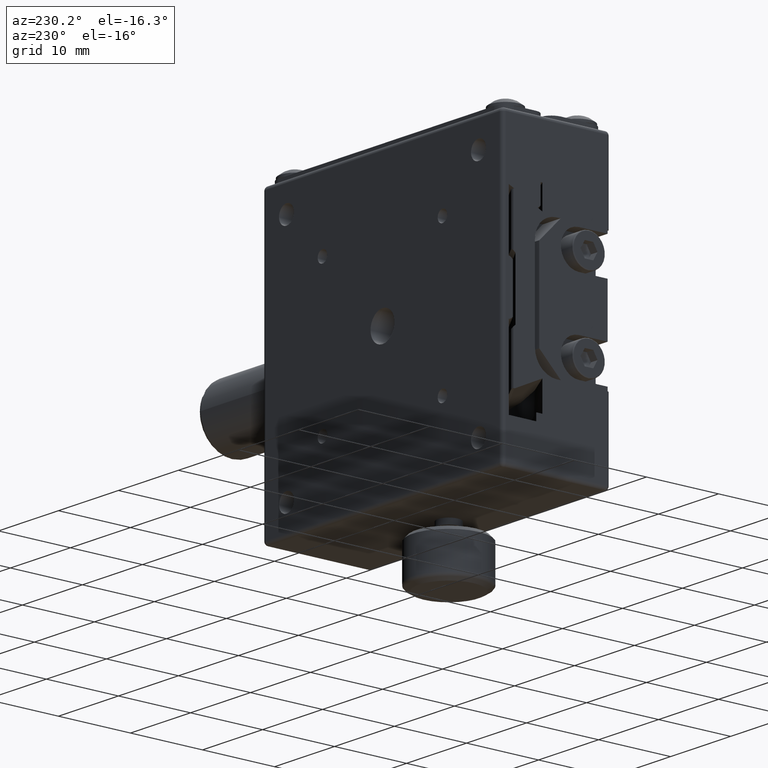
[diagram: clean part render]
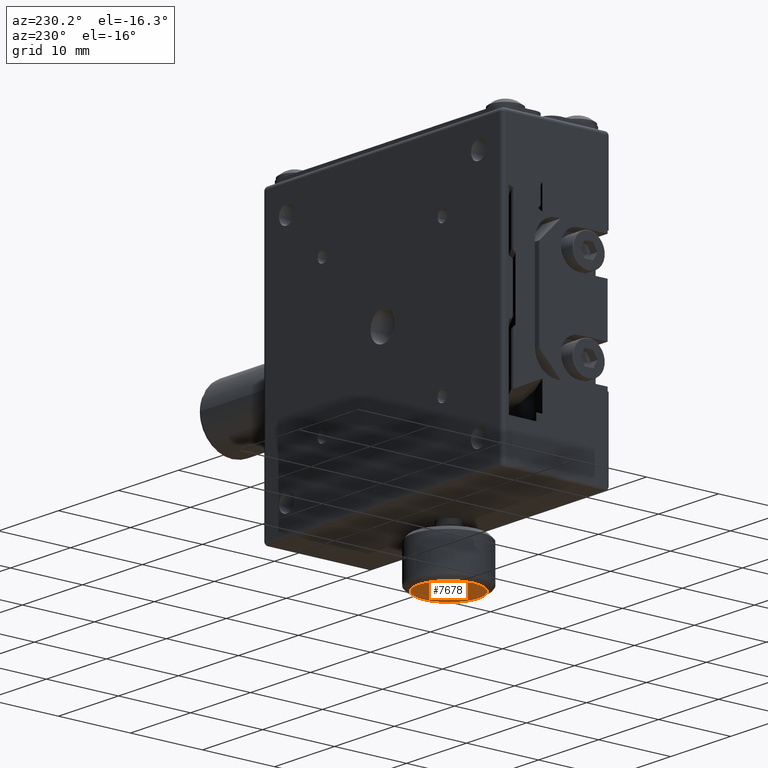
[diagram: same view with one face highlighted and labeled with its STEP entity id]
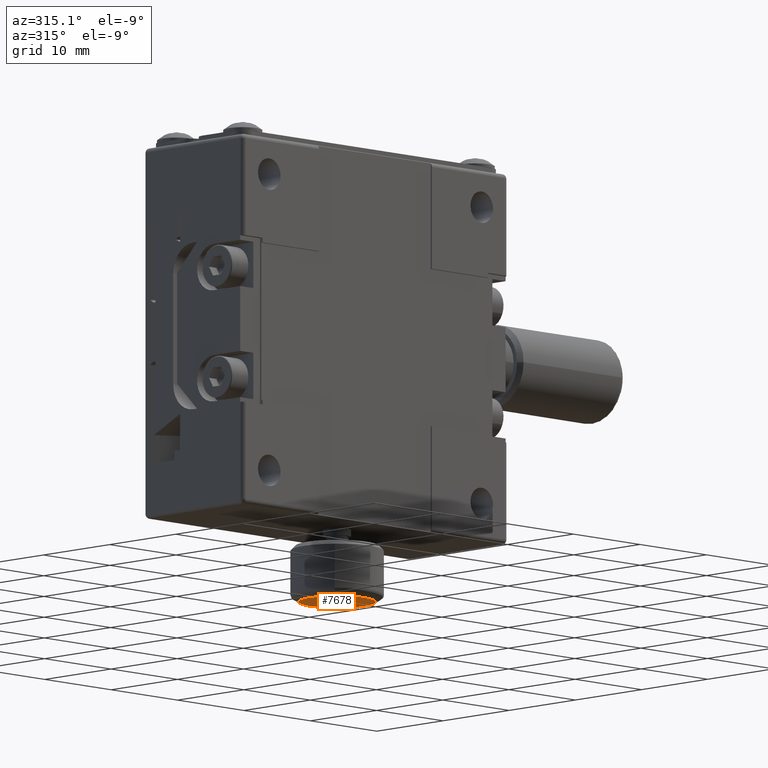
[diagram: same view with one face highlighted and labeled with its STEP entity id]
A machine part, auxiliary view. The second image highlights one B-rep face of the part: STEP entity #7678.
A second angle (auxiliary view) of the same face is appended — the face is thin or edge-on in the first view.
In plain terms, the highlighted planar face has unit normal (0, -0, 1).
Its self-contained STEP definition (entity closure, byte-faithful):
#1141 = CARTESIAN_POINT ( 'NONE',  ( -2.608861477543245044E-15, 5.799999999999999822, -27.77471870788994934 ) ) ;
#2221 = VERTEX_POINT ( 'NONE', #25006 ) ;
#7678 = ADVANCED_FACE ( 'NONE', ( #24303 ), #24886, .F. ) ;
#7893 = DIRECTION ( 'NONE',  ( 0.7429227106016729199, 0.6693772076133628346, 0.000000000000000000 ) ) ;
#8773 = DIRECTION ( 'NONE',  ( 0.7429227106016729199, 0.6693772076133628346, 0.000000000000000000 ) ) ;
#13359 = AXIS2_PLACEMENT_3D ( 'NONE', #1141, #19060, #7893 ) ;
#13447 = DIRECTION ( 'NONE',  ( 5.652217984653088889E-17, -1.102978577151109957E-16, 1.000000000000000000 ) ) ;
#14495 = ORIENTED_EDGE ( 'NONE', *, *, #24623, .T. ) ;
#15647 = CARTESIAN_POINT ( 'NONE',  ( -2.608861477543245044E-15, 5.799999999999999822, -27.77471870788994934 ) ) ;
#16321 = ORIENTED_EDGE ( 'NONE', *, *, #20799, .T. ) ;
#17064 = AXIS2_PLACEMENT_3D ( 'NONE', #15647, #13447, #17696 ) ;
#17142 = CARTESIAN_POINT ( 'NONE',  ( -2.608861477543245044E-15, 5.799999999999999822, -27.77471870788994934 ) ) ;
#17453 = AXIS2_PLACEMENT_3D ( 'NONE', #17142, #26101, #8773 ) ;
#17696 = DIRECTION ( 'NONE',  ( 0.000000000000000000, -1.000000000000000000, -1.102978577151109957E-16 ) ) ;
#17947 = CIRCLE ( 'NONE', #17453, 4.133974596215550079 ) ;
#18049 = CIRCLE ( 'NONE', #13359, 4.133974596215550079 ) ;
#19060 = DIRECTION ( 'NONE',  ( -8.017628988939559299E-17, 8.898538213302948541E-17, -1.000000000000000000 ) ) ;
#19733 = EDGE_LOOP ( 'NONE', ( #14495, #16321 ) ) ;
#20799 = EDGE_CURVE ( 'NONE', #25490, #2221, #17947, .T. ) ;
#24303 = FACE_OUTER_BOUND ( 'NONE', #19733, .T. ) ;
#24623 = EDGE_CURVE ( 'NONE', #2221, #25490, #18049, .T. ) ;
#24705 = CARTESIAN_POINT ( 'NONE',  ( 3.071223612578914963, 8.567188371559348425, -27.77471870788994934 ) ) ;
#24886 = PLANE ( 'NONE',  #17064 ) ;
#25006 = CARTESIAN_POINT ( 'NONE',  ( -3.071223612578919848, 3.032811628440664986, -27.77471870788994934 ) ) ;
#25490 = VERTEX_POINT ( 'NONE', #24705 ) ;
#26101 = DIRECTION ( 'NONE',  ( -8.017628988939559299E-17, 8.898538213302948541E-17, -1.000000000000000000 ) ) ;